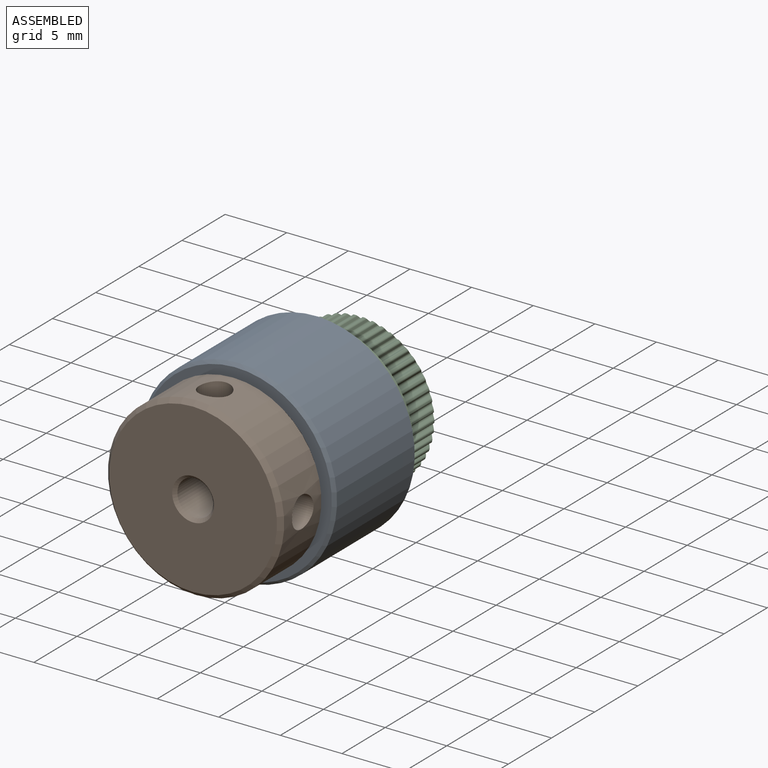
[diagram: assembled view]
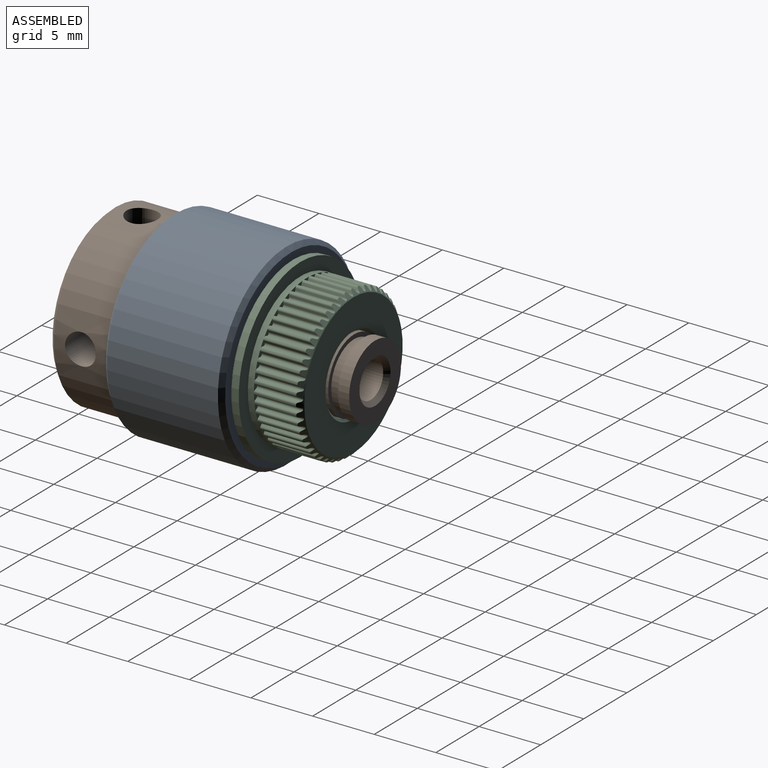
[diagram: assembled view, second angle]
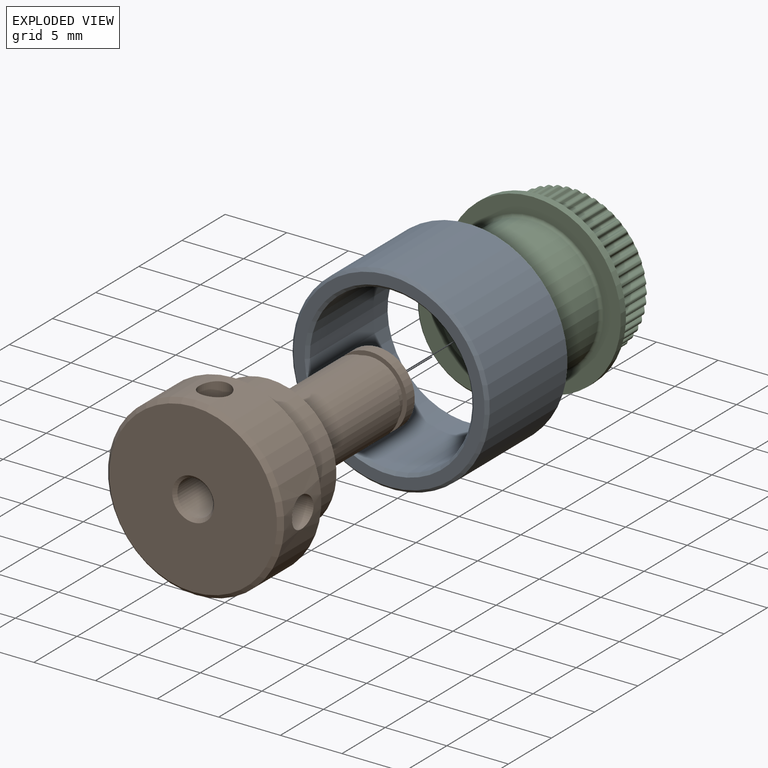
[diagram: exploded view]
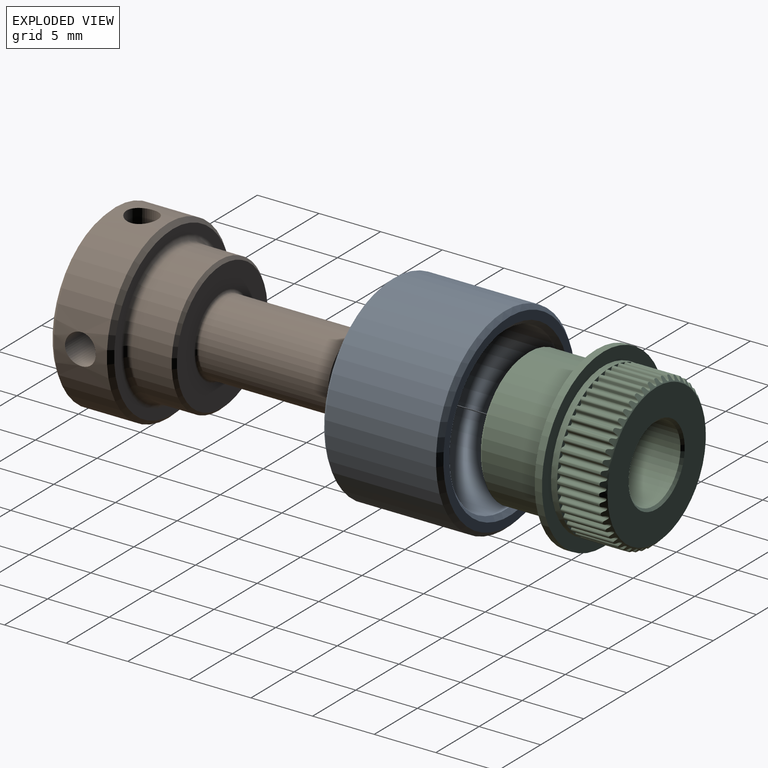
[diagram: exploded view, second angle]
ASSEMBLY  parts=3 mates=3
PART A: 8 faces, bbox 16x9.6x16 mm
  f0: cylinder r=6.6mm len=13.2mm, axis (0,-1,0), area 373.2mm2, adj f5,f7
  f1: cylinder r=8mm len=16mm, axis (0,-1,0), area 452.4mm2, adj f4,f6
  f2: plane 15.3x15.3mm, normal (0,1,0), area 32.1mm2, adj f6,f7
  f3: plane 15.5x15.5mm, normal (0,-1,0), area 41.3mm2, adj f4,f5
  f4: cone r=7.75mm half-angle=45deg, axis (0,1,0), area 17.5mm2, adj f1,f3
  f5: cone r=6.6mm half-angle=45deg, axis (0,-1,0), area 14.9mm2, adj f0,f3
  f6: cone r=8mm half-angle=45deg, axis (0,-1,0), area 24.3mm2, adj f1,f2
  f7: cone r=6.85mm half-angle=45deg, axis (0,1,0), area 21.1mm2, adj f0,f2
PART B: 21 faces, bbox 14.3x21.4x14.3 mm
  f0: cylinder r=1.25mm len=6.42mm, axis (0,0,-1), area 46.4mm2, adj f4,f5,f17
  f1: plane 6x6mm, normal (0,1,0), area 18.1mm2, adj f3,f19
  f2: plane 13.6x13.6mm, normal (0,-1,0), area 136.2mm2, adj f16,f20
  f3: cylinder r=3mm len=6mm, axis (0,-1,0), area 17mm2, adj f1,f13
  f4: cylinder r=1.45mm len=20.8mm, axis (0,-1,0), area 179mm2, adj f0,f16,f17,f19
  f5: cylinder r=7.15mm len=14.3mm, axis (0,1,0), area 183.3mm2, adj f0,f9,f17,f20
  f6: cylinder r=5.5mm len=11mm, axis (0,-1,0), area 112.3mm2, adj f10,f15
  f7: cylinder r=2.65mm len=5.3mm, axis (0,1,0), area 13.3mm2, adj f12,f13
  f8: plane 13.6x13.6mm, normal (0,1,0), area 32.2mm2, adj f9,f10
  f9: cone r=7.05mm half-angle=45deg, axis (0,-1,0), area 21.7mm2, adj f5,f8
  f10: torus R=6mm, axis (0,-1,0), area 28mm2, adj f6,f8
  f11: cylinder r=3mm len=10.45mm, axis (0,-1,0), area 197mm2, adj f12,f18
  f12: plane 6x6mm, normal (0,1,0), area 6.2mm2, adj f7,f11
  f13: plane 6x6mm, normal (0,-1,0), area 6.2mm2, adj f3,f7
  f14: plane 10.5x10.5mm, normal (0,1,0), area 53.4mm2, adj f15,f18
  f15: cone r=5.5mm half-angle=45deg, axis (0,-1,0), area 11.9mm2, adj f6,f14
  f16: cone r=1.45mm half-angle=45deg, axis (0,-1,0), area 3.5mm2, adj f2,f4
  f17: cylinder r=1.25mm len=6.42mm, axis (-1,0,0), area 46.4mm2, adj f0,f4,f5
  f18: torus R=3.25mm, axis (0,1,0), area 7.6mm2, adj f11,f14
  f19: cone r=1.7mm half-angle=45deg, axis (0,1,0), area 5.1mm2, adj f1,f4
  f20: cone r=6.8mm half-angle=45deg, axis (0,1,0), area 21.7mm2, adj f2,f5
PART C: 313 faces, bbox 14.3x10.6x14.3 mm
  f0: plane 10.5x10.5mm, normal (0,1,0), area 49.2mm2, adj f310,f311
  f1: plane 14.3x14.3mm, normal (0,-1,0), area 43.7mm2, adj f296,f300
  f2: cylinder r=0.15mm len=3.65mm, axis (0,1,0), area 1.3mm2, adj f5,f6,f7,f303
  f3: cylinder r=0.15mm len=3.5mm, axis (0,-1,0), area 0.6mm2, adj f6,f7,f296,f303
  f4: cylinder r=0.15mm len=3.5mm, axis (0,-1,0), area 0.6mm2, adj f5,f7,f296,f303
  f5: plane 3.65x0.14mm, normal (-0.87,0,0.49), area 0.6mm2, adj f2,f4,f7,f303
  f6: plane 3.65x0.16mm, normal (0.97,0,0.25), area 0.6mm2, adj f2,f3,f7,f303
  f7: plane 0.69x0.38mm, normal (0,-1,0), area 0.1mm2, adj f2,f3,f4,f5,f6,f296
  f8: cylinder r=0.15mm len=3.65mm, axis (0,1,0), area 1.3mm2, adj f11,f12,f13,f303
  f9: cylinder r=0.15mm len=3.5mm, axis (0,-1,0), area 0.6mm2, adj f12,f13,f296,f303
  f10: cylinder r=0.15mm len=3.5mm, axis (0,-1,0), area 0.6mm2, adj f11,f13,f296,f303
  f11: plane 3.65x0.13mm, normal (-0.81,0,0.59), area 0.6mm2, adj f8,f10,f13,f303
  f12: plane 3.65x0.16mm, normal (0.99,0,0.13), area 0.6mm2, adj f8,f9,f13,f303
  f13: plane 0.67x0.42mm, normal (0,-1,0), area 0.1mm2, adj f8,f9,f10,f11,f12,f296
  f14: cylinder r=0.15mm len=3.65mm, axis (0,1,0), area 1.3mm2, adj f17,f18,f19,f303
  f15: cylinder r=0.15mm len=3.5mm, axis (0,-1,0), area 0.6mm2, adj f18,f19,f296,f303
  f16: cylinder r=0.15mm len=3.5mm, axis (0,-1,0), area 0.6mm2, adj f17,f19,f296,f303
  f17: plane 3.65x0.12mm, normal (-0.72,0,0.69), area 0.6mm2, adj f14,f16,f19,f303
  f18: plane 3.65x0.16mm, normal (1,0,0.01), area 0.6mm2, adj f14,f15,f19,f303
  f19: plane 0.65x0.45mm, normal (0,-1,0), area 0.1mm2, adj f14,f15,f16,f17,f18,f296
  f20: cylinder r=0.15mm len=3.65mm, axis (0,1,0), area 1.3mm2, adj f23,f24,f25,f303
  f21: cylinder r=0.15mm len=3.5mm, axis (0,-1,0), area 0.6mm2, adj f24,f25,f296,f303
  f22: cylinder r=0.15mm len=3.5mm, axis (0,-1,0), area 0.6mm2, adj f23,f25,f296,f303
  f23: plane 3.65x0.13mm, normal (-0.63,0,0.77), area 0.6mm2, adj f20,f22,f25,f303
  f24: plane 3.65x0.16mm, normal (0.99,0,-0.12), area 0.6mm2, adj f20,f21,f25,f303
  f25: plane 0.61x0.48mm, normal (0,-1,0), area 0.1mm2, adj f20,f21,f22,f23,f24,f296
  f26: cylinder r=0.15mm len=3.65mm, axis (0,1,0), area 1.3mm2, adj f29,f30,f31,f303
  f27: cylinder r=0.15mm len=3.5mm, axis (0,-1,0), area 0.6mm2, adj f30,f31,f296,f303
  f28: cylinder r=0.15mm len=3.5mm, axis (0,-1,0), area 0.6mm2, adj f29,f31,f296,f303
  f29: plane 3.65x0.14mm, normal (-0.53,0,0.85), area 0.6mm2, adj f26,f28,f31,f303
  f30: plane 3.65x0.16mm, normal (0.97,0,-0.24), area 0.6mm2, adj f26,f27,f31,f303
  f31: plane 0.56x0.51mm, normal (0,-1,0), area 0.1mm2, adj f26,f27,f28,f29,f30,f296
  f32: cylinder r=0.15mm len=3.65mm, axis (0,1,0), area 1.3mm2, adj f35,f36,f37,f303
  f33: cylinder r=0.15mm len=3.5mm, axis (0,-1,0), area 0.6mm2, adj f36,f37,f296,f303
  f34: cylinder r=0.15mm len=3.5mm, axis (0,-1,0), area 0.6mm2, adj f35,f37,f296,f303
  f35: plane 3.65x0.15mm, normal (-0.42,0,0.91), area 0.6mm2, adj f32,f34,f37,f303
  f36: plane 3.65x0.15mm, normal (0.93,0,-0.36), area 0.6mm2, adj f32,f33,f37,f303
  f37: plane 0.53x0.53mm, normal (0,-1,0), area 0.1mm2, adj f32,f33,f34,f35,f36,f296
  f38: cylinder r=0.15mm len=3.65mm, axis (0,1,0), area 1.3mm2, adj f41,f42,f43,f303
  f39: cylinder r=0.15mm len=3.5mm, axis (0,-1,0), area 0.6mm2, adj f42,f43,f296,f303
  f40: cylinder r=0.15mm len=3.5mm, axis (0,-1,0), area 0.6mm2, adj f41,f43,f296,f303
  f41: plane 3.65x0.16mm, normal (-0.3,0,0.95), area 0.6mm2, adj f38,f40,f43,f303
  f42: plane 3.65x0.14mm, normal (0.88,0,-0.48), area 0.6mm2, adj f38,f39,f43,f303
  f43: plane 0.54x0.52mm, normal (0,-1,0), area 0.1mm2, adj f38,f39,f40,f41,f42,f296
  f44: cylinder r=0.15mm len=3.65mm, axis (0,1,0), area 1.3mm2, adj f47,f48,f49,f303
  f45: cylinder r=0.15mm len=3.5mm, axis (0,-1,0), area 0.6mm2, adj f48,f49,f296,f303
  f46: cylinder r=0.15mm len=3.5mm, axis (0,-1,0), area 0.6mm2, adj f47,f49,f296,f303
  f47: plane 3.65x0.16mm, normal (-0.18,0,0.98), area 0.6mm2, adj f44,f46,f49,f303
  f48: plane 3.65x0.13mm, normal (0.81,0,-0.58), area 0.6mm2, adj f44,f45,f49,f303
  f49: plane 0.59x0.5mm, normal (0,-1,0), area 0.1mm2, adj f44,f45,f46,f47,f48,f296
  f50: cylinder r=0.15mm len=3.65mm, axis (0,1,0), area 1.3mm2, adj f53,f54,f55,f303
  f51: cylinder r=0.15mm len=3.5mm, axis (0,-1,0), area 0.6mm2, adj f54,f55,f296,f303
  f52: cylinder r=0.15mm len=3.5mm, axis (0,-1,0), area 0.6mm2, adj f53,f55,f296,f303
  f53: plane 3.65x0.16mm, normal (-0.06,0,1), area 0.6mm2, adj f50,f52,f55,f303
  f54: plane 3.65x0.12mm, normal (0.73,0,-0.68), area 0.6mm2, adj f50,f51,f55,f303
  f55: plane 0.63x0.47mm, normal (0,-1,0), area 0.1mm2, adj f50,f51,f52,f53,f54,f296
  f56: cylinder r=0.15mm len=3.65mm, axis (0,1,0), area 1.3mm2, adj f59,f60,f61,f303
  f57: cylinder r=0.15mm len=3.5mm, axis (0,-1,0), area 0.6mm2, adj f60,f61,f296,f303
  f58: cylinder r=0.15mm len=3.5mm, axis (0,-1,0), area 0.6mm2, adj f59,f61,f296,f303
  f59: plane 3.65x0.16mm, normal (0.07,0,1), area 0.6mm2, adj f56,f58,f61,f303
  f60: plane 3.65x0.13mm, normal (0.64,0,-0.77), area 0.6mm2, adj f56,f57,f61,f303
  f61: plane 0.66x0.44mm, normal (0,-1,0), area 0.1mm2, adj f56,f57,f58,f59,f60,f296
  f62: cylinder r=0.15mm len=3.65mm, axis (0,1,0), area 1.3mm2, adj f65,f66,f67,f303
  f63: cylinder r=0.15mm len=3.5mm, axis (0,-1,0), area 0.6mm2, adj f66,f67,f296,f303
  f64: cylinder r=0.15mm len=3.5mm, axis (0,-1,0), area 0.6mm2, adj f65,f67,f296,f303
  f65: plane 3.65x0.16mm, normal (0.19,0,0.98), area 0.6mm2, adj f62,f64,f67,f303
  f66: plane 3.65x0.14mm, normal (0.54,0,-0.84), area 0.6mm2, adj f62,f63,f67,f303
  f67: plane 0.68x0.4mm, normal (0,-1,0), area 0.1mm2, adj f62,f63,f64,f65,f66,f296
  f68: cylinder r=0.15mm len=3.65mm, axis (0,1,0), area 1.3mm2, adj f71,f72,f73,f303
  f69: cylinder r=0.15mm len=3.5mm, axis (0,-1,0), area 0.6mm2, adj f72,f73,f296,f303
  f70: cylinder r=0.15mm len=3.5mm, axis (0,-1,0), area 0.6mm2, adj f71,f73,f296,f303
  f71: plane 3.65x0.16mm, normal (0.31,0,0.95), area 0.6mm2, adj f68,f70,f73,f303
  f72: plane 3.65x0.15mm, normal (0.43,0,-0.9), area 0.6mm2, adj f68,f69,f73,f303
  f73: plane 0.69x0.36mm, normal (0,-1,0), area 0.1mm2, adj f68,f69,f70,f71,f72,f296
  f74: cylinder r=0.15mm len=3.65mm, axis (0,1,0), area 1.3mm2, adj f77,f78,f79,f303
  f75: cylinder r=0.15mm len=3.5mm, axis (0,-1,0), area 0.6mm2, adj f78,f79,f296,f303
  f76: cylinder r=0.15mm len=3.5mm, axis (0,-1,0), area 0.6mm2, adj f77,f79,f296,f303
  f77: plane 3.65x0.15mm, normal (0.43,0,0.9), area 0.6mm2, adj f74,f76,f79,f303
  f78: plane 3.65x0.16mm, normal (0.31,0,-0.95), area 0.6mm2, adj f74,f75,f79,f303
  f79: plane 0.69x0.36mm, normal (0,-1,0), area 0.1mm2, adj f74,f75,f76,f77,f78,f296
  f80: cylinder r=0.15mm len=3.65mm, axis (0,1,0), area 1.3mm2, adj f83,f84,f85,f303
  f81: cylinder r=0.15mm len=3.5mm, axis (0,-1,0), area 0.6mm2, adj f84,f85,f296,f303
  f82: cylinder r=0.15mm len=3.5mm, axis (0,-1,0), area 0.6mm2, adj f83,f85,f296,f303
  f83: plane 3.65x0.14mm, normal (0.54,0,0.84), area 0.6mm2, adj f80,f82,f85,f303
  f84: plane 3.65x0.16mm, normal (0.19,0,-0.98), area 0.6mm2, adj f80,f81,f85,f303
  f85: plane 0.68x0.4mm, normal (0,-1,0), area 0.1mm2, adj f80,f81,f82,f83,f84,f296
  f86: cylinder r=0.15mm len=3.65mm, axis (0,1,0), area 1.3mm2, adj f89,f90,f91,f303
  f87: cylinder r=0.15mm len=3.5mm, axis (0,-1,0), area 0.6mm2, adj f90,f91,f296,f303
  f88: cylinder r=0.15mm len=3.5mm, axis (0,-1,0), area 0.6mm2, adj f89,f91,f296,f303
  f89: plane 3.65x0.13mm, normal (0.64,0,0.77), area 0.6mm2, adj f86,f88,f91,f303
  f90: plane 3.65x0.16mm, normal (0.07,0,-1), area 0.6mm2, adj f86,f87,f91,f303
  f91: plane 0.66x0.44mm, normal (0,-1,0), area 0.1mm2, adj f86,f87,f88,f89,f90,f296
  f92: cylinder r=0.15mm len=3.65mm, axis (0,1,0), area 1.3mm2, adj f95,f96,f97,f303
  f93: cylinder r=0.15mm len=3.5mm, axis (0,-1,0), area 0.6mm2, adj f96,f97,f296,f303
  f94: cylinder r=0.15mm len=3.5mm, axis (0,-1,0), area 0.6mm2, adj f95,f97,f296,f303
  f95: plane 3.65x0.12mm, normal (0.73,0,0.68), area 0.6mm2, adj f92,f94,f97,f303
  f96: plane 3.65x0.16mm, normal (-0.06,0,-1), area 0.6mm2, adj f92,f93,f97,f303
  f97: plane 0.63x0.47mm, normal (0,-1,0), area 0.1mm2, adj f92,f93,f94,f95,f96,f296
  f98: cylinder r=0.15mm len=3.65mm, axis (0,1,0), area 1.3mm2, adj f101,f102,f103,f303
  f99: cylinder r=0.15mm len=3.5mm, axis (0,-1,0), area 0.6mm2, adj f102,f103,f296,f303
  f100: cylinder r=0.15mm len=3.5mm, axis (0,-1,0), area 0.6mm2, adj f101,f103,f296,f303
  f101: plane 3.65x0.13mm, normal (0.81,0,0.58), area 0.6mm2, adj f98,f100,f103,f303
  f102: plane 3.65x0.16mm, normal (-0.18,0,-0.98), area 0.6mm2, adj f98,f99,f103,f303
  f103: plane 0.59x0.5mm, normal (0,-1,0), area 0.1mm2, adj f98,f99,f100,f101,f102,f296
  f104: cylinder r=0.15mm len=3.65mm, axis (0,1,0), area 1.3mm2, adj f107,f108,f109,f303
  f105: cylinder r=0.15mm len=3.5mm, axis (0,-1,0), area 0.6mm2, adj f108,f109,f296,f303
  f106: cylinder r=0.15mm len=3.5mm, axis (0,-1,0), area 0.6mm2, adj f107,f109,f296,f303
  f107: plane 3.65x0.14mm, normal (0.88,0,0.48), area 0.6mm2, adj f104,f106,f109,f303
  f108: plane 3.65x0.16mm, normal (-0.3,0,-0.95), area 0.6mm2, adj f104,f105,f109,f303
  f109: plane 0.54x0.52mm, normal (0,-1,0), area 0.1mm2, adj f104,f105,f106,f107,f108,f296
  f110: cylinder r=0.15mm len=3.65mm, axis (0,1,0), area 1.3mm2, adj f113,f114,f115,f303
  f111: cylinder r=0.15mm len=3.5mm, axis (0,-1,0), area 0.6mm2, adj f114,f115,f296,f303
  f112: cylinder r=0.15mm len=3.5mm, axis (0,-1,0), area 0.6mm2, adj f113,f115,f296,f303
  f113: plane 3.65x0.15mm, normal (0.93,0,0.36), area 0.6mm2, adj f110,f112,f115,f303
  f114: plane 3.65x0.15mm, normal (-0.42,0,-0.91), area 0.6mm2, adj f110,f111,f115,f303
  f115: plane 0.53x0.53mm, normal (0,-1,0), area 0.1mm2, adj f110,f111,f112,f113,f114,f296
  f116: cylinder r=0.15mm len=3.65mm, axis (0,1,0), area 1.3mm2, adj f119,f120,f121,f303
  f117: cylinder r=0.15mm len=3.5mm, axis (0,-1,0), area 0.6mm2, adj f120,f121,f296,f303
  f118: cylinder r=0.15mm len=3.5mm, axis (0,-1,0), area 0.6mm2, adj f119,f121,f296,f303
  f119: plane 3.65x0.16mm, normal (0.97,0,0.24), area 0.6mm2, adj f116,f118,f121,f303
  f120: plane 3.65x0.14mm, normal (-0.53,0,-0.85), area 0.6mm2, adj f116,f117,f121,f303
  f121: plane 0.56x0.51mm, normal (0,-1,0), area 0.1mm2, adj f116,f117,f118,f119,f120,f296
  f122: cylinder r=0.15mm len=3.65mm, axis (0,1,0), area 1.3mm2, adj f125,f126,f127,f303
  f123: cylinder r=0.15mm len=3.5mm, axis (0,-1,0), area 0.6mm2, adj f126,f127,f296,f303
  f124: cylinder r=0.15mm len=3.5mm, axis (0,-1,0), area 0.6mm2, adj f125,f127,f296,f303
  f125: plane 3.65x0.16mm, normal (0.99,0,0.12), area 0.6mm2, adj f122,f124,f127,f303
  f126: plane 3.65x0.13mm, normal (-0.63,0,-0.77), area 0.6mm2, adj f122,f123,f127,f303
  f127: plane 0.61x0.48mm, normal (0,-1,0), area 0.1mm2, adj f122,f123,f124,f125,f126,f296
  f128: cylinder r=0.15mm len=3.65mm, axis (0,1,0), area 1.3mm2, adj f131,f132,f133,f303
  f129: cylinder r=0.15mm len=3.5mm, axis (0,-1,0), area 0.6mm2, adj f132,f133,f296,f303
  f130: cylinder r=0.15mm len=3.5mm, axis (0,-1,0), area 0.6mm2, adj f131,f133,f296,f303
  f131: plane 3.65x0.16mm, normal (1,0,-0.01), area 0.6mm2, adj f128,f130,f133,f303
  f132: plane 3.65x0.12mm, normal (-0.72,0,-0.69), area 0.6mm2, adj f128,f129,f133,f303
  f133: plane 0.65x0.45mm, normal (0,-1,0), area 0.1mm2, adj f128,f129,f130,f131,f132,f296
  f134: cylinder r=0.15mm len=3.65mm, axis (0,1,0), area 1.3mm2, adj f137,f138,f139,f303
  f135: cylinder r=0.15mm len=3.5mm, axis (0,-1,0), area 0.6mm2, adj f138,f139,f296,f303
  f136: cylinder r=0.15mm len=3.5mm, axis (0,-1,0), area 0.6mm2, adj f137,f139,f296,f303
  f137: plane 3.65x0.16mm, normal (0.99,0,-0.13), area 0.6mm2, adj f134,f136,f139,f303
  f138: plane 3.65x0.13mm, normal (-0.81,0,-0.59), area 0.6mm2, adj f134,f135,f139,f303
  f139: plane 0.67x0.42mm, normal (0,-1,0), area 0.1mm2, adj f134,f135,f136,f137,f138,f296
  f140: cylinder r=0.15mm len=3.65mm, axis (0,1,0), area 1.3mm2, adj f143,f144,f145,f303
  f141: cylinder r=0.15mm len=3.5mm, axis (0,-1,0), area 0.6mm2, adj f144,f145,f296,f303
  f142: cylinder r=0.15mm len=3.5mm, axis (0,-1,0), area 0.6mm2, adj f143,f145,f296,f303
  f143: plane 3.65x0.16mm, normal (0.97,0,-0.25), area 0.6mm2, adj f140,f142,f145,f303
  f144: plane 3.65x0.14mm, normal (-0.87,0,-0.49), area 0.6mm2, adj f140,f141,f145,f303
  f145: plane 0.69x0.38mm, normal (0,-1,0), area 0.1mm2, adj f140,f141,f142,f143,f144,f296
  f146: cylinder r=0.15mm len=3.65mm, axis (0,1,0), area 1.3mm2, adj f149,f150,f151,f303
  f147: cylinder r=0.15mm len=3.5mm, axis (0,-1,0), area 0.6mm2, adj f150,f151,f296,f303
  f148: cylinder r=0.15mm len=3.5mm, axis (0,-1,0), area 0.6mm2, adj f149,f151,f296,f303
  f149: plane 3.65x0.15mm, normal (0.93,0,-0.37), area 0.6mm2, adj f146,f148,f151,f303
  f150: plane 3.65x0.15mm, normal (-0.93,0,-0.37), area 0.6mm2, adj f146,f147,f151,f303
  f151: plane 0.7x0.35mm, normal (0,-1,0), area 0.1mm2, adj f146,f147,f148,f149,f150,f296
  f152: cylinder r=0.15mm len=3.65mm, axis (0,1,0), area 1.3mm2, adj f155,f156,f157,f303
  f153: cylinder r=0.15mm len=3.5mm, axis (0,-1,0), area 0.6mm2, adj f156,f157,f296,f303
  f154: cylinder r=0.15mm len=3.5mm, axis (0,-1,0), area 0.6mm2, adj f155,f157,f296,f303
  f155: plane 3.65x0.14mm, normal (0.87,0,-0.49), area 0.6mm2, adj f152,f154,f157,f303
  f156: plane 3.65x0.16mm, normal (-0.97,0,-0.25), area 0.6mm2, adj f152,f153,f157,f303
  f157: plane 0.69x0.38mm, normal (0,-1,0), area 0.1mm2, adj f152,f153,f154,f155,f156,f296
  f158: cylinder r=0.15mm len=3.65mm, axis (0,1,0), area 1.3mm2, adj f161,f162,f163,f303
  f159: cylinder r=0.15mm len=3.5mm, axis (0,-1,0), area 0.6mm2, adj f162,f163,f296,f303
  f160: cylinder r=0.15mm len=3.5mm, axis (0,-1,0), area 0.6mm2, adj f161,f163,f296,f303
  f161: plane 3.65x0.13mm, normal (0.81,0,-0.59), area 0.6mm2, adj f158,f160,f163,f303
  f162: plane 3.65x0.16mm, normal (-0.99,0,-0.13), area 0.6mm2, adj f158,f159,f163,f303
  f163: plane 0.67x0.42mm, normal (0,-1,0), area 0.1mm2, adj f158,f159,f160,f161,f162,f296
  f164: cylinder r=0.15mm len=3.65mm, axis (0,1,0), area 1.3mm2, adj f167,f168,f169,f303
  f165: cylinder r=0.15mm len=3.5mm, axis (0,-1,0), area 0.6mm2, adj f168,f169,f296,f303
  f166: cylinder r=0.15mm len=3.5mm, axis (0,-1,0), area 0.6mm2, adj f167,f169,f296,f303
  f167: plane 3.65x0.12mm, normal (0.72,0,-0.69), area 0.6mm2, adj f164,f166,f169,f303
  f168: plane 3.65x0.16mm, normal (-1,0,-0.01), area 0.6mm2, adj f164,f165,f169,f303
  f169: plane 0.65x0.45mm, normal (0,-1,0), area 0.1mm2, adj f164,f165,f166,f167,f168,f296
  f170: cylinder r=0.15mm len=3.65mm, axis (0,1,0), area 1.3mm2, adj f173,f174,f175,f303
  f171: cylinder r=0.15mm len=3.5mm, axis (0,-1,0), area 0.6mm2, adj f174,f175,f296,f303
  f172: cylinder r=0.15mm len=3.5mm, axis (0,-1,0), area 0.6mm2, adj f173,f175,f296,f303
  f173: plane 3.65x0.13mm, normal (0.63,0,-0.77), area 0.6mm2, adj f170,f172,f175,f303
  f174: plane 3.65x0.16mm, normal (-0.99,0,0.12), area 0.6mm2, adj f170,f171,f175,f303
  f175: plane 0.61x0.48mm, normal (0,-1,0), area 0.1mm2, adj f170,f171,f172,f173,f174,f296
  f176: cylinder r=0.15mm len=3.65mm, axis (0,1,0), area 1.3mm2, adj f179,f180,f181,f303
  f177: cylinder r=0.15mm len=3.5mm, axis (0,-1,0), area 0.6mm2, adj f180,f181,f296,f303
  f178: cylinder r=0.15mm len=3.5mm, axis (0,-1,0), area 0.6mm2, adj f179,f181,f296,f303
  f179: plane 3.65x0.14mm, normal (0.53,0,-0.85), area 0.6mm2, adj f176,f178,f181,f303
  f180: plane 3.65x0.16mm, normal (-0.97,0,0.24), area 0.6mm2, adj f176,f177,f181,f303
  f181: plane 0.56x0.51mm, normal (0,-1,0), area 0.1mm2, adj f176,f177,f178,f179,f180,f296
  f182: cylinder r=0.15mm len=3.65mm, axis (0,1,0), area 1.3mm2, adj f185,f186,f187,f303
  f183: cylinder r=0.15mm len=3.5mm, axis (0,-1,0), area 0.6mm2, adj f186,f187,f296,f303
  f184: cylinder r=0.15mm len=3.5mm, axis (0,-1,0), area 0.6mm2, adj f185,f187,f296,f303
  f185: plane 3.65x0.15mm, normal (0.42,0,-0.91), area 0.6mm2, adj f182,f184,f187,f303
  f186: plane 3.65x0.15mm, normal (-0.93,0,0.36), area 0.6mm2, adj f182,f183,f187,f303
  f187: plane 0.53x0.53mm, normal (0,-1,0), area 0.1mm2, adj f182,f183,f184,f185,f186,f296
  f188: cylinder r=0.15mm len=3.65mm, axis (0,1,0), area 1.3mm2, adj f191,f192,f193,f303
  f189: cylinder r=0.15mm len=3.5mm, axis (0,-1,0), area 0.6mm2, adj f192,f193,f296,f303
  f190: cylinder r=0.15mm len=3.5mm, axis (0,-1,0), area 0.6mm2, adj f191,f193,f296,f303
  f191: plane 3.65x0.16mm, normal (0.3,0,-0.95), area 0.6mm2, adj f188,f190,f193,f303
  f192: plane 3.65x0.14mm, normal (-0.88,0,0.48), area 0.6mm2, adj f188,f189,f193,f303
  f193: plane 0.54x0.52mm, normal (0,-1,0), area 0.1mm2, adj f188,f189,f190,f191,f192,f296
  f194: cylinder r=0.15mm len=3.65mm, axis (0,1,0), area 1.3mm2, adj f197,f198,f199,f303
  f195: cylinder r=0.15mm len=3.5mm, axis (0,-1,0), area 0.6mm2, adj f198,f199,f296,f303
  f196: cylinder r=0.15mm len=3.5mm, axis (0,-1,0), area 0.6mm2, adj f197,f199,f296,f303
  f197: plane 3.65x0.16mm, normal (0.18,0,-0.98), area 0.6mm2, adj f194,f196,f199,f303
  f198: plane 3.65x0.13mm, normal (-0.81,0,0.58), area 0.6mm2, adj f194,f195,f199,f303
  f199: plane 0.59x0.5mm, normal (0,-1,0), area 0.1mm2, adj f194,f195,f196,f197,f198,f296
  f200: cylinder r=0.15mm len=3.65mm, axis (0,1,0), area 1.3mm2, adj f203,f204,f205,f303
  f201: cylinder r=0.15mm len=3.5mm, axis (0,-1,0), area 0.6mm2, adj f204,f205,f296,f303
  f202: cylinder r=0.15mm len=3.5mm, axis (0,-1,0), area 0.6mm2, adj f203,f205,f296,f303
  f203: plane 3.65x0.16mm, normal (0.06,0,-1), area 0.6mm2, adj f200,f202,f205,f303
  f204: plane 3.65x0.12mm, normal (-0.73,0,0.68), area 0.6mm2, adj f200,f201,f205,f303
  f205: plane 0.63x0.47mm, normal (0,-1,0), area 0.1mm2, adj f200,f201,f202,f203,f204,f296
  f206: cylinder r=0.15mm len=3.65mm, axis (0,1,0), area 1.3mm2, adj f209,f210,f211,f303
  f207: cylinder r=0.15mm len=3.5mm, axis (0,-1,0), area 0.6mm2, adj f210,f211,f296,f303
  f208: cylinder r=0.15mm len=3.5mm, axis (0,-1,0), area 0.6mm2, adj f209,f211,f296,f303
  f209: plane 3.65x0.16mm, normal (-0.07,0,-1), area 0.6mm2, adj f206,f208,f211,f303
  f210: plane 3.65x0.13mm, normal (-0.64,0,0.77), area 0.6mm2, adj f206,f207,f211,f303
  f211: plane 0.66x0.44mm, normal (0,-1,0), area 0.1mm2, adj f206,f207,f208,f209,f210,f296
  f212: cylinder r=0.15mm len=3.65mm, axis (0,1,0), area 1.3mm2, adj f215,f216,f217,f303
  f213: cylinder r=0.15mm len=3.5mm, axis (0,-1,0), area 0.6mm2, adj f216,f217,f296,f303
  f214: cylinder r=0.15mm len=3.5mm, axis (0,-1,0), area 0.6mm2, adj f215,f217,f296,f303
  f215: plane 3.65x0.16mm, normal (-0.19,0,-0.98), area 0.6mm2, adj f212,f214,f217,f303
  f216: plane 3.65x0.14mm, normal (-0.54,0,0.84), area 0.6mm2, adj f212,f213,f217,f303
  f217: plane 0.68x0.4mm, normal (0,-1,0), area 0.1mm2, adj f212,f213,f214,f215,f216,f296
  f218: cylinder r=0.15mm len=3.65mm, axis (0,1,0), area 1.3mm2, adj f221,f222,f223,f303
  f219: cylinder r=0.15mm len=3.5mm, axis (0,-1,0), area 0.6mm2, adj f222,f223,f296,f303
  f220: cylinder r=0.15mm len=3.5mm, axis (0,-1,0), area 0.6mm2, adj f221,f223,f296,f303
  f221: plane 3.65x0.16mm, normal (-0.31,0,-0.95), area 0.6mm2, adj f218,f220,f223,f303
  f222: plane 3.65x0.15mm, normal (-0.43,0,0.9), area 0.6mm2, adj f218,f219,f223,f303
  f223: plane 0.69x0.36mm, normal (0,-1,0), area 0.1mm2, adj f218,f219,f220,f221,f222,f296
  f224: cylinder r=0.15mm len=3.65mm, axis (0,1,0), area 1.3mm2, adj f227,f228,f229,f303
  f225: cylinder r=0.15mm len=3.5mm, axis (0,-1,0), area 0.6mm2, adj f228,f229,f296,f303
  f226: cylinder r=0.15mm len=3.5mm, axis (0,-1,0), area 0.6mm2, adj f227,f229,f296,f303
  f227: plane 3.65x0.15mm, normal (-0.43,0,-0.9), area 0.6mm2, adj f224,f226,f229,f303
  f228: plane 3.65x0.16mm, normal (-0.31,0,0.95), area 0.6mm2, adj f224,f225,f229,f303
  f229: plane 0.69x0.36mm, normal (0,-1,0), area 0.1mm2, adj f224,f225,f226,f227,f228,f296
  f230: cylinder r=0.15mm len=3.65mm, axis (0,1,0), area 1.3mm2, adj f233,f234,f235,f303
  f231: cylinder r=0.15mm len=3.5mm, axis (0,-1,0), area 0.6mm2, adj f234,f235,f296,f303
  f232: cylinder r=0.15mm len=3.5mm, axis (0,-1,0), area 0.6mm2, adj f233,f235,f296,f303
  f233: plane 3.65x0.14mm, normal (-0.54,0,-0.84), area 0.6mm2, adj f230,f232,f235,f303
  f234: plane 3.65x0.16mm, normal (-0.19,0,0.98), area 0.6mm2, adj f230,f231,f235,f303
  f235: plane 0.68x0.4mm, normal (0,-1,0), area 0.1mm2, adj f230,f231,f232,f233,f234,f296
  f236: cylinder r=0.15mm len=3.65mm, axis (0,1,0), area 1.3mm2, adj f239,f240,f241,f303
  f237: cylinder r=0.15mm len=3.5mm, axis (0,-1,0), area 0.6mm2, adj f240,f241,f296,f303
  f238: cylinder r=0.15mm len=3.5mm, axis (0,-1,0), area 0.6mm2, adj f239,f241,f296,f303
  f239: plane 3.65x0.13mm, normal (-0.64,0,-0.77), area 0.6mm2, adj f236,f238,f241,f303
  f240: plane 3.65x0.16mm, normal (-0.07,0,1), area 0.6mm2, adj f236,f237,f241,f303
  f241: plane 0.66x0.44mm, normal (0,-1,0), area 0.1mm2, adj f236,f237,f238,f239,f240,f296
  f242: cylinder r=0.15mm len=3.65mm, axis (0,1,0), area 1.3mm2, adj f245,f246,f247,f303
  f243: cylinder r=0.15mm len=3.5mm, axis (0,-1,0), area 0.6mm2, adj f246,f247,f296,f303
  f244: cylinder r=0.15mm len=3.5mm, axis (0,-1,0), area 0.6mm2, adj f245,f247,f296,f303
  f245: plane 3.65x0.12mm, normal (-0.73,0,-0.68), area 0.6mm2, adj f242,f244,f247,f303
  f246: plane 3.65x0.16mm, normal (0.06,0,1), area 0.6mm2, adj f242,f243,f247,f303
  f247: plane 0.63x0.47mm, normal (0,-1,0), area 0.1mm2, adj f242,f243,f244,f245,f246,f296
  f248: cylinder r=0.15mm len=3.65mm, axis (0,1,0), area 1.3mm2, adj f251,f252,f253,f303
  f249: cylinder r=0.15mm len=3.5mm, axis (0,-1,0), area 0.6mm2, adj f252,f253,f296,f303
  f250: cylinder r=0.15mm len=3.5mm, axis (0,-1,0), area 0.6mm2, adj f251,f253,f296,f303
  f251: plane 3.65x0.13mm, normal (-0.81,0,-0.58), area 0.6mm2, adj f248,f250,f253,f303
  f252: plane 3.65x0.16mm, normal (0.18,0,0.98), area 0.6mm2, adj f248,f249,f253,f303
  f253: plane 0.59x0.5mm, normal (0,-1,0), area 0.1mm2, adj f248,f249,f250,f251,f252,f296
  f254: cylinder r=0.15mm len=3.65mm, axis (0,1,0), area 1.3mm2, adj f257,f258,f259,f303
  f255: cylinder r=0.15mm len=3.5mm, axis (0,-1,0), area 0.6mm2, adj f258,f259,f296,f303
  f256: cylinder r=0.15mm len=3.5mm, axis (0,-1,0), area 0.6mm2, adj f257,f259,f296,f303
  f257: plane 3.65x0.14mm, normal (-0.88,0,-0.48), area 0.6mm2, adj f254,f256,f259,f303
  f258: plane 3.65x0.16mm, normal (0.3,0,0.95), area 0.6mm2, adj f254,f255,f259,f303
  f259: plane 0.54x0.52mm, normal (0,-1,0), area 0.1mm2, adj f254,f255,f256,f257,f258,f296
  f260: cylinder r=0.15mm len=3.65mm, axis (0,1,0), area 1.3mm2, adj f263,f264,f265,f303
  f261: cylinder r=0.15mm len=3.5mm, axis (0,-1,0), area 0.6mm2, adj f264,f265,f296,f303
  f262: cylinder r=0.15mm len=3.5mm, axis (0,-1,0), area 0.6mm2, adj f263,f265,f296,f303
  f263: plane 3.65x0.15mm, normal (-0.93,0,-0.36), area 0.6mm2, adj f260,f262,f265,f303
  f264: plane 3.65x0.15mm, normal (0.42,0,0.91), area 0.6mm2, adj f260,f261,f265,f303
  f265: plane 0.53x0.53mm, normal (0,-1,0), area 0.1mm2, adj f260,f261,f262,f263,f264,f296
  f266: cylinder r=0.15mm len=3.65mm, axis (0,1,0), area 1.3mm2, adj f269,f270,f271,f303
  f267: cylinder r=0.15mm len=3.5mm, axis (0,-1,0), area 0.6mm2, adj f270,f271,f296,f303
  f268: cylinder r=0.15mm len=3.5mm, axis (0,-1,0), area 0.6mm2, adj f269,f271,f296,f303
  f269: plane 3.65x0.16mm, normal (-0.97,0,-0.24), area 0.6mm2, adj f266,f268,f271,f303
  f270: plane 3.65x0.14mm, normal (0.53,0,0.85), area 0.6mm2, adj f266,f267,f271,f303
  f271: plane 0.56x0.51mm, normal (0,-1,0), area 0.1mm2, adj f266,f267,f268,f269,f270,f296
  f272: cylinder r=0.15mm len=3.65mm, axis (0,1,0), area 1.3mm2, adj f275,f276,f277,f303
  f273: cylinder r=0.15mm len=3.5mm, axis (0,-1,0), area 0.6mm2, adj f276,f277,f296,f303
  f274: cylinder r=0.15mm len=3.5mm, axis (0,-1,0), area 0.6mm2, adj f275,f277,f296,f303
  f275: plane 3.65x0.16mm, normal (-0.99,0,-0.12), area 0.6mm2, adj f272,f274,f277,f303
  f276: plane 3.65x0.13mm, normal (0.63,0,0.77), area 0.6mm2, adj f272,f273,f277,f303
  f277: plane 0.61x0.48mm, normal (0,-1,0), area 0.1mm2, adj f272,f273,f274,f275,f276,f296
  f278: cylinder r=0.15mm len=3.65mm, axis (0,1,0), area 1.3mm2, adj f281,f282,f283,f303
  f279: cylinder r=0.15mm len=3.5mm, axis (0,-1,0), area 0.6mm2, adj f282,f283,f296,f303
  f280: cylinder r=0.15mm len=3.5mm, axis (0,-1,0), area 0.6mm2, adj f281,f283,f296,f303
  f281: plane 3.65x0.16mm, normal (-1,0,0.01), area 0.6mm2, adj f278,f280,f283,f303
  f282: plane 3.65x0.12mm, normal (0.72,0,0.69), area 0.6mm2, adj f278,f279,f283,f303
  f283: plane 0.65x0.45mm, normal (0,-1,0), area 0.1mm2, adj f278,f279,f280,f281,f282,f296
  f284: cylinder r=0.15mm len=3.65mm, axis (0,1,0), area 1.3mm2, adj f287,f288,f289,f303
  f285: cylinder r=0.15mm len=3.5mm, axis (0,-1,0), area 0.6mm2, adj f288,f289,f296,f303
  f286: cylinder r=0.15mm len=3.5mm, axis (0,-1,0), area 0.6mm2, adj f287,f289,f296,f303
  f287: plane 3.65x0.16mm, normal (-0.99,0,0.13), area 0.6mm2, adj f284,f286,f289,f303
  f288: plane 3.65x0.13mm, normal (0.81,0,0.59), area 0.6mm2, adj f284,f285,f289,f303
  f289: plane 0.67x0.42mm, normal (0,-1,0), area 0.1mm2, adj f284,f285,f286,f287,f288,f296
  f290: cylinder r=0.15mm len=3.65mm, axis (0,1,0), area 1.3mm2, adj f293,f294,f295,f303
  f291: cylinder r=0.15mm len=3.5mm, axis (0,-1,0), area 0.6mm2, adj f294,f295,f296,f303
  f292: cylinder r=0.15mm len=3.5mm, axis (0,-1,0), area 0.6mm2, adj f293,f295,f296,f303
  f293: plane 3.65x0.16mm, normal (-0.97,0,0.25), area 0.6mm2, adj f290,f292,f295,f303
  f294: plane 3.65x0.14mm, normal (0.87,0,0.49), area 0.6mm2, adj f290,f291,f295,f303
  f295: plane 0.69x0.38mm, normal (0,-1,0), area 0.1mm2, adj f290,f291,f292,f293,f294,f296
  f296: cylinder r=6.1mm len=12.2mm, axis (0,-1,0), area 31.2mm2, adj f1,f3,f4,f7,f9,f10,f13,f15
  f297: cylinder r=3.05mm len=10mm, axis (0,-1,0), area 191.6mm2, adj f311,f312
  f298: cylinder r=5.5mm len=11mm, axis (0,-1,0), area 179.7mm2, adj f302,f310
  f299: plane 14.3x14.3mm, normal (0,1,0), area 56.7mm2, adj f300,f302
  f300: cylinder r=7.15mm len=14.3mm, axis (0,1,0), area 27mm2, adj f1,f299
  f301: plane 11.4x11.4mm, normal (0,-1,0), area 68.9mm2, adj f303,f312
  f302: torus R=5.75mm, axis (0,-1,0), area 13.8mm2, adj f298,f299
  f303: cone r=5.5mm half-angle=45deg, axis (0,1,0), area 12.1mm2, adj f2,f3,f4,f5,f6,f8,f9,f10
  f304: plane 3.65x0.15mm, normal (-0.93,0,0.37), area 0.6mm2, adj f303,f306,f307,f309
  f305: plane 3.65x0.15mm, normal (0.93,0,0.37), area 0.6mm2, adj f303,f306,f308,f309
  f306: plane 0.7x0.35mm, normal (0,-1,0), area 0.1mm2, adj f296,f304,f305,f307,f308,f309
  f307: cylinder r=0.15mm len=3.5mm, axis (0,-1,0), area 0.6mm2, adj f296,f303,f304,f306
  f308: cylinder r=0.15mm len=3.5mm, axis (0,-1,0), area 0.6mm2, adj f296,f303,f305,f306
  f309: cylinder r=0.15mm len=3.65mm, axis (0,1,0), area 1.3mm2, adj f303,f304,f305,f306
  f310: cone r=5.25mm half-angle=45deg, axis (0,-1,0), area 11.9mm2, adj f0,f298
  f311: cone r=3.45mm half-angle=45deg, axis (0,1,0), area 11.6mm2, adj f0,f297
  f312: cone r=3.2mm half-angle=45deg, axis (0,-1,0), area 5.6mm2, adj f297,f301
PLACE A rot(axis=(0,-1,0),79.2deg) t=(4.37,12.22,0.55)mm
PLACE B t=(4.37,12.22,0.55)mm fixed
PLACE C rot(axis=(1,0,0),180deg) t=(4.37,27.77,0.55)mm
MATE revolute C.f298 <-> B.f3  axis (0,-1,0) through (4.37,16.47,0.55)mm
MATE planar A.f1 <-> B.f5  axis (0,-1,0) through (4.37,12.22,0.55)mm
MATE cylindrical A.f1 <-> B.f5  axis (0,-1,0) through (4.37,16.97,0.55)mm
